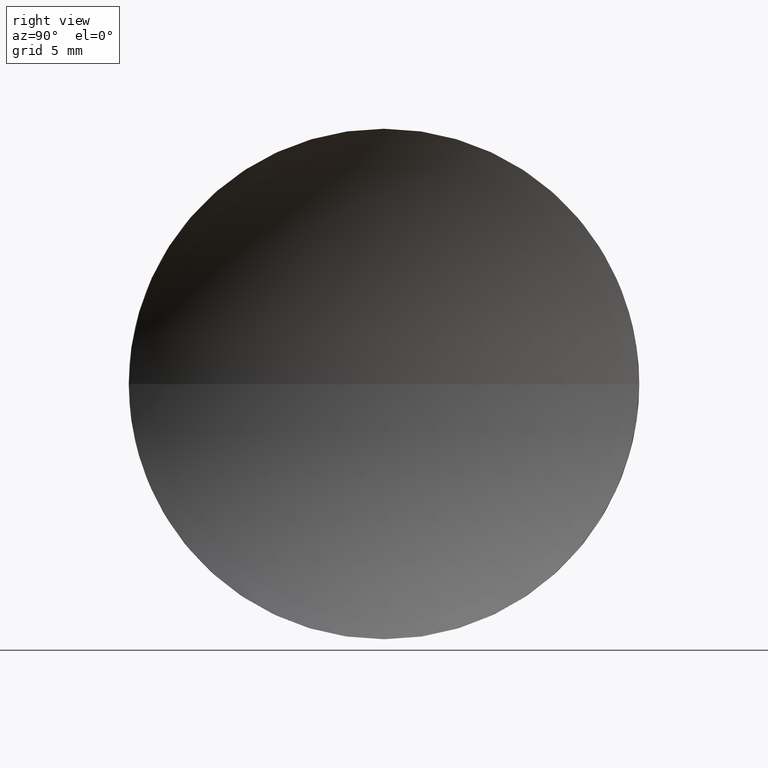
[diagram: clean part render]
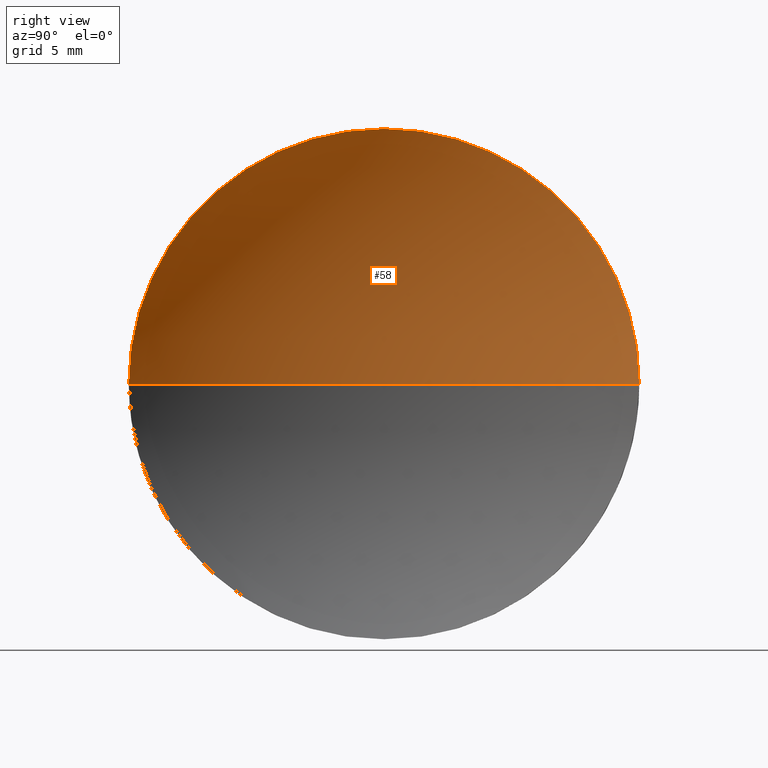
[diagram: same view with one face highlighted and labeled with its STEP entity id]
A machine part, right view. The second image highlights one B-rep face of the part: STEP entity #58.
In plain terms, the highlighted spherical surface has radius 22.92 mm.
Its self-contained STEP definition (entity closure, byte-faithful):
#3 = EDGE_CURVE ( 'NONE', #127, #163, #16, .T. ) ;
#8 = EDGE_CURVE ( 'NONE', #156, #27, #166, .T. ) ;
#10 = EDGE_LOOP ( 'NONE', ( #131, #113, #21, #120 ) ) ;
#15 = CARTESIAN_POINT ( 'NONE',  ( 144.2829307920347300, 71.19398908659371700, 0.0000000000000000000 ) ) ;
#16 = CIRCLE ( 'NONE', #150, 22.92000000000000900 ) ;
#21 = ORIENTED_EDGE ( 'NONE', *, *, #8, .F. ) ;
#24 = CARTESIAN_POINT ( 'NONE',  ( 125.2031928483417000, 71.19398908659370300, 0.0000000000000000000 ) ) ;
#27 = VERTEX_POINT ( 'NONE', #186 ) ;
#29 = CARTESIAN_POINT ( 'NONE',  ( 125.2031928483417000, 83.89398908659370600, 1.555301434917137400E-015 ) ) ;
#30 = CARTESIAN_POINT ( 'NONE',  ( 125.2031928483417000, 71.19398908659370300, 0.0000000000000000000 ) ) ;
#42 = CIRCLE ( 'NONE', #116, 22.92000000000000900 ) ;
#47 = AXIS2_PLACEMENT_3D ( 'NONE', #30, #171, #121 ) ;
#48 = DIRECTION ( 'NONE',  ( -1.000000000000000000, -0.0000000000000000000, -0.0000000000000000000 ) ) ;
#58 = ADVANCED_FACE ( 'NONE', ( #157 ), #89, .F. ) ;
#59 = DIRECTION ( 'NONE',  ( 0.0000000000000000000, -1.000000000000000000, 0.0000000000000000000 ) ) ;
#74 = DIRECTION ( 'NONE',  ( -1.000000000000000000, 0.0000000000000000000, 0.0000000000000000000 ) ) ;
#82 = CIRCLE ( 'NONE', #149, 12.70000000000000300 ) ;
#89 = SPHERICAL_SURFACE ( 'NONE', #130, 22.92000000000000500 ) ;
#95 = CARTESIAN_POINT ( 'NONE',  ( 144.2829307920347300, 71.19398908659371700, 0.0000000000000000000 ) ) ;
#98 = CARTESIAN_POINT ( 'NONE',  ( 144.2829307920347300, 71.19398908659371700, 0.0000000000000000000 ) ) ;
#107 = DIRECTION ( 'NONE',  ( 0.0000000000000000000, 0.0000000000000000000, 1.000000000000000000 ) ) ;
#111 = CARTESIAN_POINT ( 'NONE',  ( 121.3629307920347300, 71.19398908659371700, 0.0000000000000000000 ) ) ;
#113 = ORIENTED_EDGE ( 'NONE', *, *, #178, .F. ) ;
#116 = AXIS2_PLACEMENT_3D ( 'NONE', #98, #125, #74 ) ;
#120 = ORIENTED_EDGE ( 'NONE', *, *, #146, .T. ) ;
#121 = DIRECTION ( 'NONE',  ( 0.0000000000000000000, 0.0000000000000000000, 1.000000000000000000 ) ) ;
#125 = DIRECTION ( 'NONE',  ( 0.0000000000000000000, 0.0000000000000000000, -1.000000000000000000 ) ) ;
#127 = VERTEX_POINT ( 'NONE', #29 ) ;
#130 = AXIS2_PLACEMENT_3D ( 'NONE', #15, #141, #59 ) ;
#131 = ORIENTED_EDGE ( 'NONE', *, *, #3, .F. ) ;
#141 = DIRECTION ( 'NONE',  ( 0.0000000000000000000, 0.0000000000000000000, 1.000000000000000000 ) ) ;
#143 = DIRECTION ( 'NONE',  ( 0.0000000000000000000, -1.000000000000000000, -1.224646799147353000E-016 ) ) ;
#146 = EDGE_CURVE ( 'NONE', #156, #163, #42, .T. ) ;
#149 = AXIS2_PLACEMENT_3D ( 'NONE', #24, #48, #107 ) ;
#150 = AXIS2_PLACEMENT_3D ( 'NONE', #95, #173, #143 ) ;
#156 = VERTEX_POINT ( 'NONE', #176 ) ;
#157 = FACE_OUTER_BOUND ( 'NONE', #10, .T. ) ;
#163 = VERTEX_POINT ( 'NONE', #111 ) ;
#166 = CIRCLE ( 'NONE', #47, 12.70000000000000300 ) ;
#171 = DIRECTION ( 'NONE',  ( -1.000000000000000000, -0.0000000000000000000, -0.0000000000000000000 ) ) ;
#173 = DIRECTION ( 'NONE',  ( 0.0000000000000000000, -1.224646799147353200E-016, 1.000000000000000000 ) ) ;
#176 = CARTESIAN_POINT ( 'NONE',  ( 125.2031928483417000, 58.49398908659371400, 0.0000000000000000000 ) ) ;
#178 = EDGE_CURVE ( 'NONE', #27, #127, #82, .T. ) ;
#186 = CARTESIAN_POINT ( 'NONE',  ( 125.2031928483417000, 71.19398908659370300, 12.70000000000000300 ) ) ;